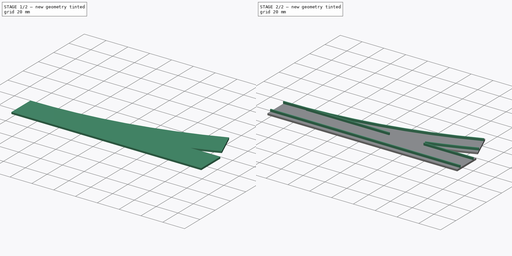
[diagram: build sequence overview — one tinted view per stage of 2, left to right]
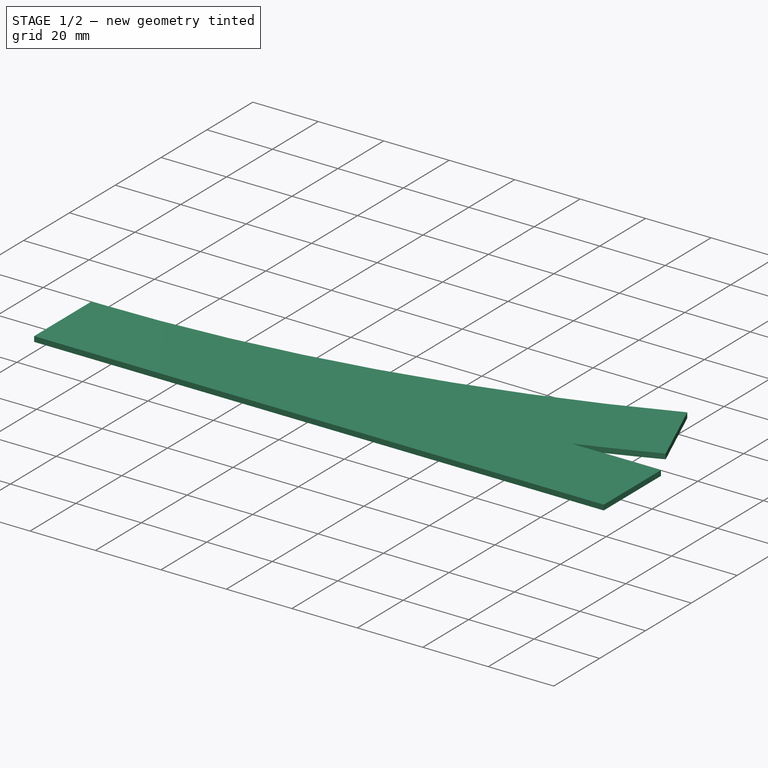
[diagram: stage 1 of 2 — iso view after this stage's code; geometry added in this stage tinted green]
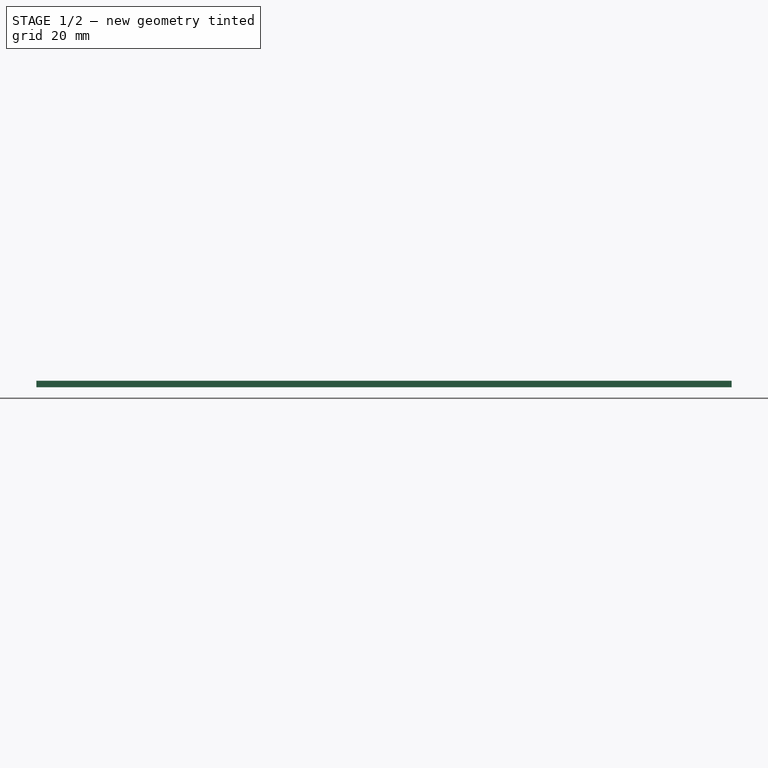
[diagram: stage 1 of 2 — front view after this stage's code; geometry added in this stage tinted green]
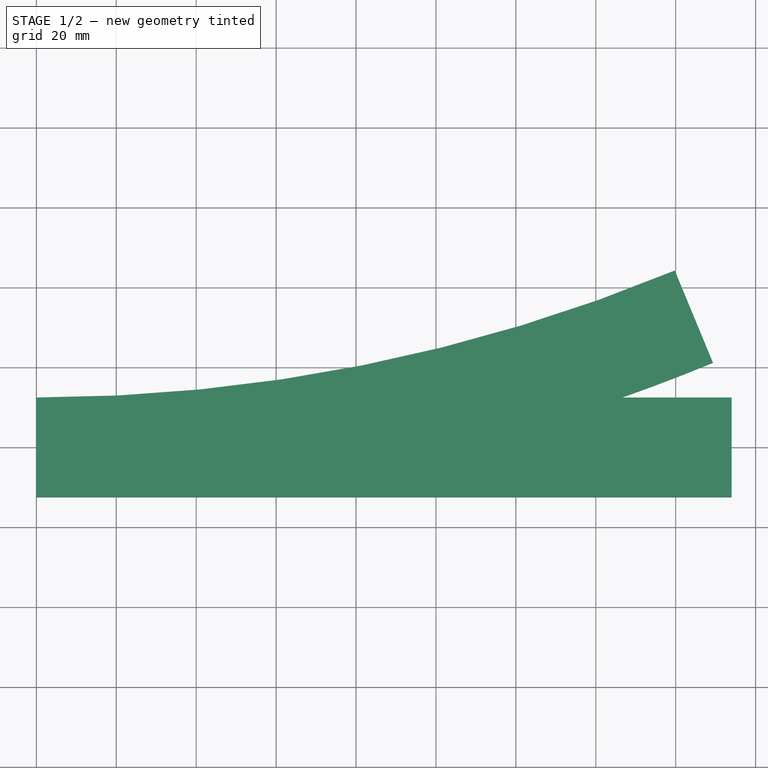
[diagram: stage 1 of 2 — top view after this stage's code; geometry added in this stage tinted green]
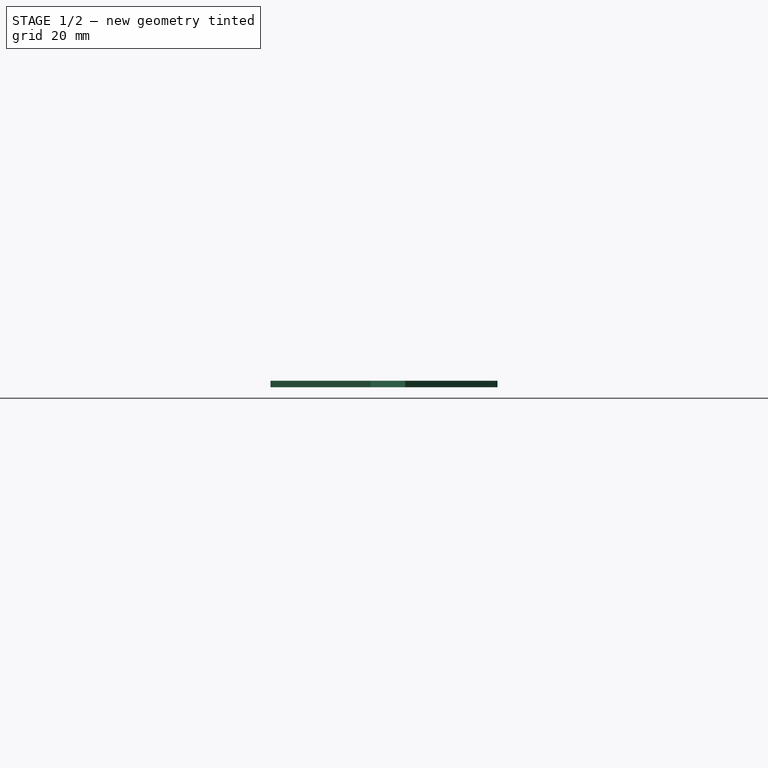
[diagram: stage 1 of 2 — right view after this stage's code; geometry added in this stage tinted green]
FCSTD DOCUMENT  (FreeCAD 0.18R16131 (Git))
Label: Turnout
License: All rights reserved
LicenseURL: http://en.wikipedia.org/wiki/All_rights_reserved
objects: Sketcher::SketchObject×2, PartDesign::Pad×2, PartDesign::Body×1
note: 7 computed .brp shape members not serialized (recipe doc carries the construction recipe); baked Part::Feature solids carry a one-line shape summary decoded from their .brp

FEATURE [Sketcher::SketchObject] Sketch
  MapMode = 5
  Support = -> [XY_Plane]
  sketch-geometry (11):
    g0: LineSegment [constr] StartX=0 StartY=-12.5 StartZ=0 EndX=0 EndY=0 EndZ=0
    g1: LineSegment [constr] StartX=0 StartY=0 StartZ=0 EndX=-7.67e-14 EndY=12.5 EndZ=0
    g2: LineSegment StartX=0 StartY=-12.5 StartZ=0 EndX=174 EndY=-12.5 EndZ=0
    g3: LineSegment StartX=0 StartY=-12.5 StartZ=0 EndX=-7.67e-14 EndY=12.5 EndZ=0
    g4: LineSegment StartX=174 StartY=-12.5 StartZ=0 EndX=174 EndY=12.5 EndZ=0
    g5: LineSegment StartX=174 StartY=12.5 StartZ=0 EndX=146.629 EndY=12.5 EndZ=0
    g6: LineSegment [constr] StartX=0 StartY=0 StartZ=0 EndX=174 EndY=0 EndZ=0
    g7: ArcOfCircle CenterX=0 CenterY=430 CenterZ=0 NormalX=0 NormalY=0 NormalZ=1 AngleXU=0 Radius=417.5 StartAngle=4.71239 EndAngle=5.10509
    g8: ArcOfCircle CenterX=0 CenterY=430 CenterZ=0 NormalX=0 NormalY=0 NormalZ=1 AngleXU=0 Radius=442.5 StartAngle=5.05014 EndAngle=5.10509
    g9: LineSegment [constr] StartX=0 StartY=430 StartZ=0 EndX=169.337 EndY=21.1833 EndZ=0
    g10: LineSegment StartX=159.77 StartY=44.2803 StartZ=0 EndX=169.337 EndY=21.1833 EndZ=0
  constraints (31):
    c: PointOnObject(g1,g-2)
    c: PointOnObject(g0,g-2)
    c: Coincident(g0,g-1)
    c: Coincident(g1,g0)
    c: Equal(g1,g0)
    c: Coincident(g2,g0)
    c: Horizontal(g2)
    c: DistanceX(g2,g2) = 174
    c: DistanceY(g2,g1) = 25
    c: Coincident(g3,g2)
    c: Coincident(g3,g1)
    c: Coincident(g4,g2)
    c: Vertical(g4)
    c: Equal(g4,g3)
    c: Coincident(g5,g4)
    c: Horizontal(g5)
    c: Coincident(g6,g-1)
    c: PointOnObject(g6,g4)
    c: Horizontal(g6)
    c: Coincident(g7,g3)
    c: Coincident(g8,g7)
    c: Coincident(g8,g5)
    c: Coincident(g9,g7)
    c: Coincident(g9,g8)
    c: PointOnObject(g7,g9)
    c: Coincident(g10,g7)
    c: Coincident(g10,g8)
    c: Equal(g10,g3)
    c: Angle(g-2,g9) = 0.392699
    c: PointOnObject(g7,g-2)
    c: DistanceY(g-1,g7) = 430
FEATURE [PartDesign::Pad] Pad
  Length = 1.6
  Length2 = 100
  Profile = -> Sketch
  Type = 0
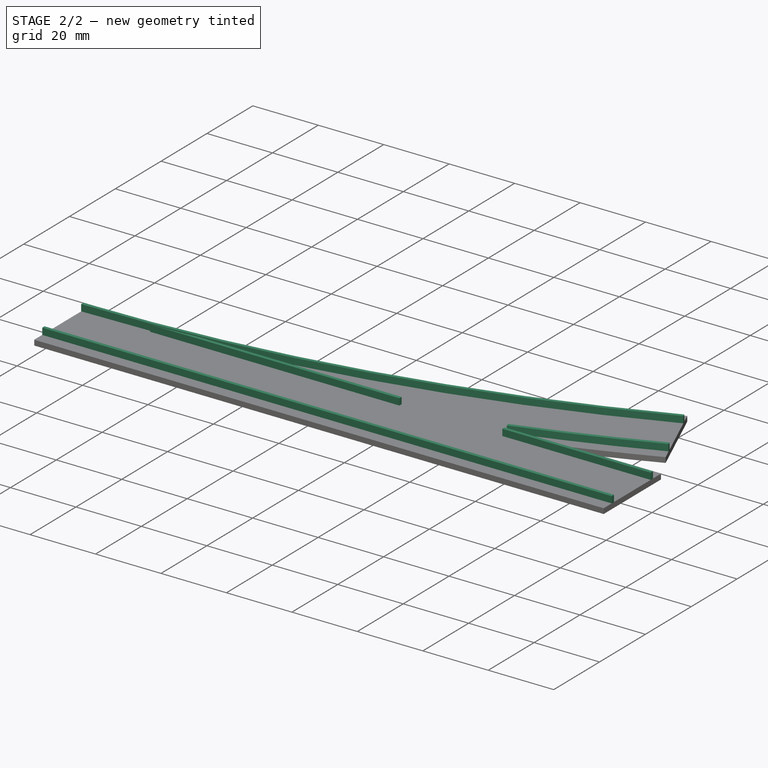
[diagram: stage 2 of 2 — iso view after this stage's code; geometry added in this stage tinted green]
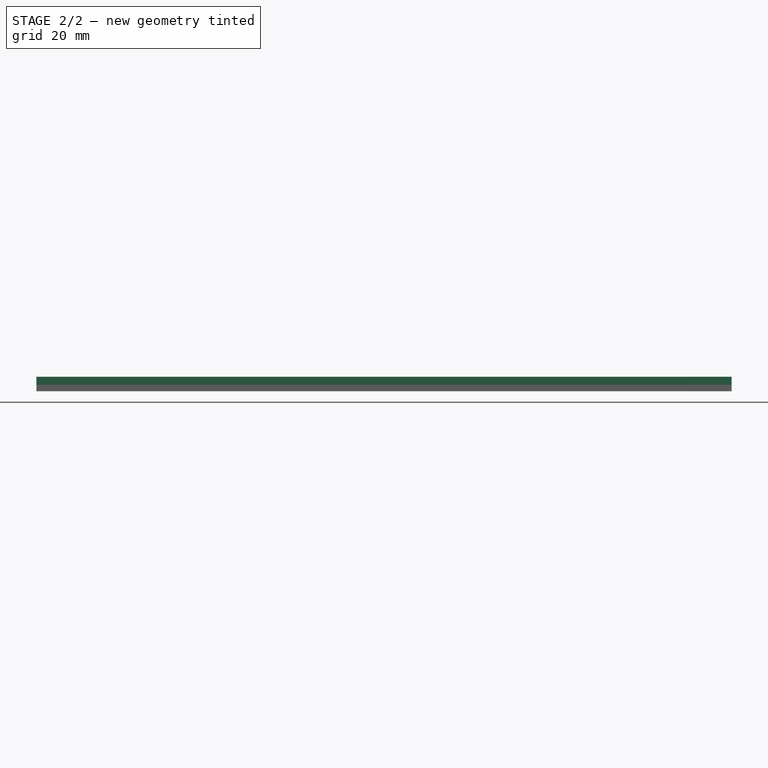
[diagram: stage 2 of 2 — front view after this stage's code; geometry added in this stage tinted green]
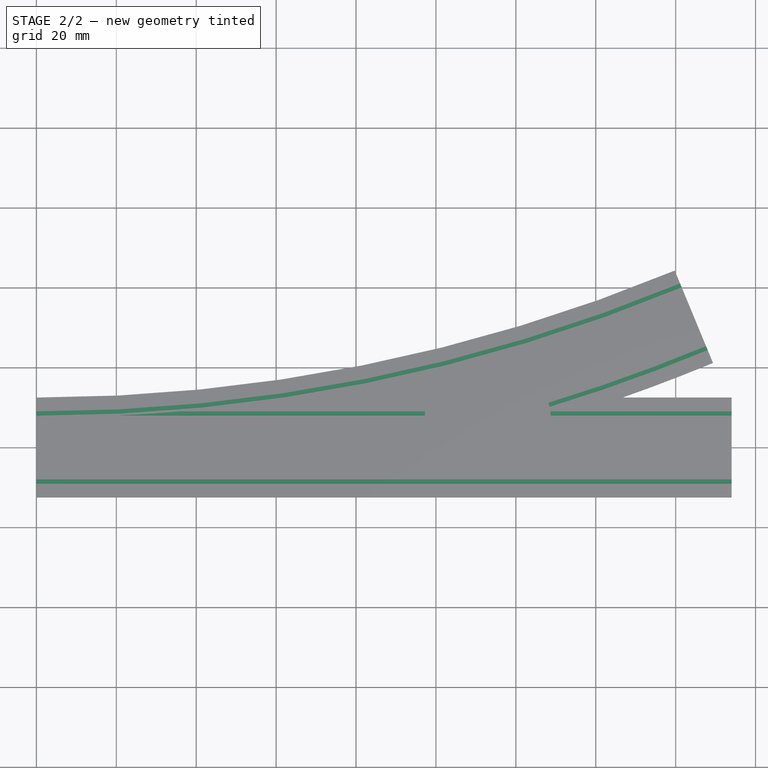
[diagram: stage 2 of 2 — top view after this stage's code; geometry added in this stage tinted green]
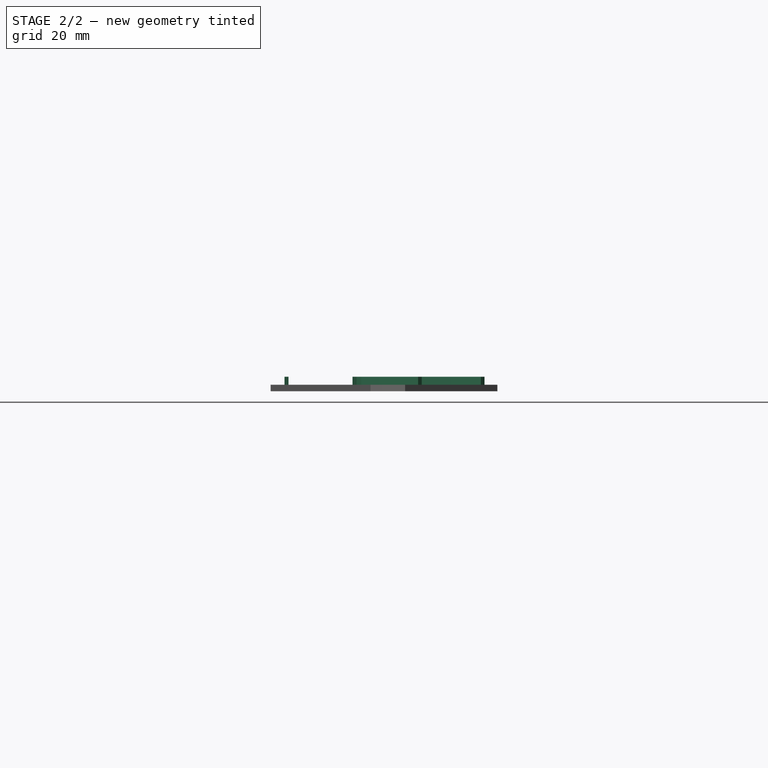
[diagram: stage 2 of 2 — right view after this stage's code; geometry added in this stage tinted green]
FEATURE [Sketcher::SketchObject] Sketch001
  ExternalGeometry = -> [Pad]
  MapMode = 5
  Placement = pos=(0,0,1.6) rot=(0,0,1;0rad)
  Support = -> [Pad]
  sketch-geometry (22):
    g0: LineSegment StartX=0 StartY=-8 StartZ=0 EndX=174 EndY=-8 EndZ=0
    g1: LineSegment StartX=174 StartY=-8 StartZ=0 EndX=174 EndY=-9 EndZ=0
    g2: LineSegment StartX=174 StartY=-9 StartZ=0 EndX=0 EndY=-9 EndZ=0
    g3: LineSegment StartX=0 StartY=-9 StartZ=0 EndX=0 EndY=-8 EndZ=0
    g4: ArcOfCircle CenterX=0 CenterY=430 CenterZ=0 NormalX=0 NormalY=0 NormalZ=1 AngleXU=0 Radius=422 StartAngle=4.71239 EndAngle=5.10509
    g5: ArcOfCircle CenterX=0 CenterY=430 CenterZ=0 NormalX=0 NormalY=0 NormalZ=1 AngleXU=0 Radius=421 StartAngle=4.71239 EndAngle=5.10509
    g6: LineSegment StartX=-7.73e-14 StartY=9 StartZ=0 EndX=-7.75e-14 EndY=8 EndZ=0
    g7: LineSegment StartX=161.11 StartY=41.0467 StartZ=0 EndX=161.492 EndY=40.1228 EndZ=0
    g8: ArcOfCircle CenterX=0 CenterY=430 CenterZ=0 NormalX=0 NormalY=0 NormalZ=1 AngleXU=0 Radius=439 StartAngle=5.00943 EndAngle=5.10509
    g9: ArcOfCircle CenterX=0 CenterY=430 CenterZ=0 NormalX=0 NormalY=0 NormalZ=1 AngleXU=0 Radius=438 StartAngle=5.00943 EndAngle=5.10509
    g10: LineSegment StartX=167.615 StartY=25.3408 StartZ=0 EndX=167.998 EndY=24.4169 EndZ=0
    g11: LineSegment StartX=128.702 StartY=8 StartZ=0 EndX=174 EndY=8 EndZ=0
    g12: LineSegment StartX=174 StartY=8 StartZ=0 EndX=174 EndY=9 EndZ=0
    g13: LineSegment StartX=174 StartY=9 StartZ=0 EndX=128.702 EndY=9 EndZ=0
    g14: LineSegment StartX=128.702 StartY=9 StartZ=0 EndX=128.702 EndY=8 EndZ=0
    g15: LineSegment [constr] StartX=0 StartY=430 StartZ=0 EndX=128.491 EndY=10.225 EndZ=0
    g16: LineSegment StartX=128.198 StartY=11.1812 StartZ=0 EndX=128.491 EndY=10.225 EndZ=0
    g17: LineSegment StartX=97.218 StartY=8 StartZ=0 EndX=97.218 EndY=9 EndZ=0
    g18: LineSegment StartX=97.218 StartY=9 StartZ=0 EndX=35.8785 EndY=9 EndZ=0
    g19: LineSegment StartX=97.218 StartY=8 StartZ=0 EndX=21.0776 EndY=8 EndZ=0
    g20: ArcOfCircle CenterX=0 CenterY=430 CenterZ=0 NormalX=0 NormalY=0 NormalZ=1 AngleXU=0 Radius=422.526 StartAngle=4.76229 EndAngle=4.79741
    g21: LineSegment [constr] StartX=97.218 StartY=8 StartZ=0 EndX=128.702 EndY=8 EndZ=0
  constraints (60):
    c: Coincident(g0,g1)
    c: Coincident(g1,g2)
    c: Coincident(g2,g3)
    c: Coincident(g3,g0)
    c: Horizontal(g0)
    c: Horizontal(g2)
    c: Vertical(g1)
    c: Vertical(g3)
    c: PointOnObject(g0,g-4)
    c: PointOnObject(g1,g-3)
    c: DistanceY(g0,g-1) = 8
    c: DistanceY(g3,g3) = 1
    c: Coincident(g4,g-6)
    c: PointOnObject(g4,g-4)
    c: PointOnObject(g4,g-8)
    c: Coincident(g5,g4)
    c: PointOnObject(g5,g-4)
    c: PointOnObject(g5,g-8)
    c: Coincident(g6,g5)
    c: Coincident(g6,g4)
    c: Equal(g6,g3)
    c: DistanceY(g-1,g4) = 8
    c: Coincident(g7,g5)
    c: Coincident(g7,g4)
    c: Coincident(g8,g4)
    c: PointOnObject(g8,g-8)
    c: Coincident(g9,g4)
    c: PointOnObject(g9,g-8)
    c: Coincident(g10,g9)
    c: Coincident(g10,g8)
    c: Distance(g4,g9) = 16
    c: Equal(g10,g7)
    c: Coincident(g11,g12)
    c: Coincident(g12,g13)
    c: Coincident(g13,g14)
    c: Coincident(g14,g11)
    c: Horizontal(g11)
    c: Horizontal(g13)
    c: Vertical(g12)
    c: Vertical(g14)
    c: PointOnObject(g12,g-3)
    c: Equal(g12,g1)
    c: Coincident(g15,g4)
    c: Coincident(g15,g8)
    c: PointOnObject(g9,g15)
    c: Coincident(g16,g9)
    c: Coincident(g16,g8)
    c: Vertical(g17)
    c: Coincident(g18,g17)
    c: Horizontal(g18)
    c: Horizontal(g19)
    c: Coincident(g20,g4)
    c: Coincident(g20,g18)
    c: Coincident(g20,g19)
    c: Coincident(g17,g19)
    c: Coincident(g21,g17)
    c: Coincident(g21,g11)
    c: Horizontal(g21)
    c: Equal(g14,g17)
    c: DistanceY(g0,g11) = 16
FEATURE [PartDesign::Pad] Pad001
  BaseFeature = -> Pad
  Length = 2
  Length2 = 100
  Profile = -> Sketch001
  Type = 0
FEATURE [PartDesign::Body] Body
  Group = -> [Sketch,Pad,Sketch001,Pad001]
  Origin = -> Origin
  Tip = -> Pad001
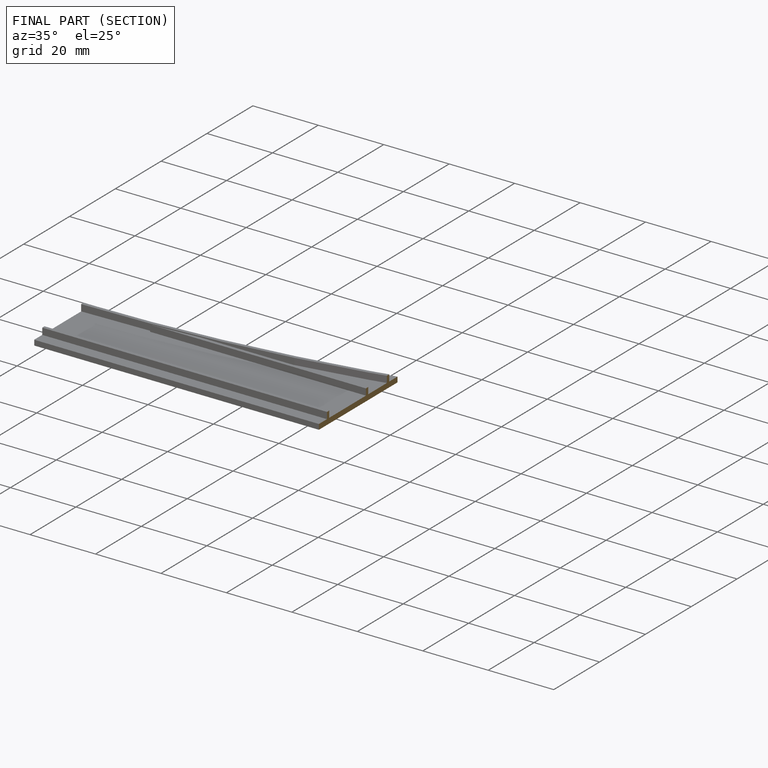
[diagram: finished part — half-section view (interior)]
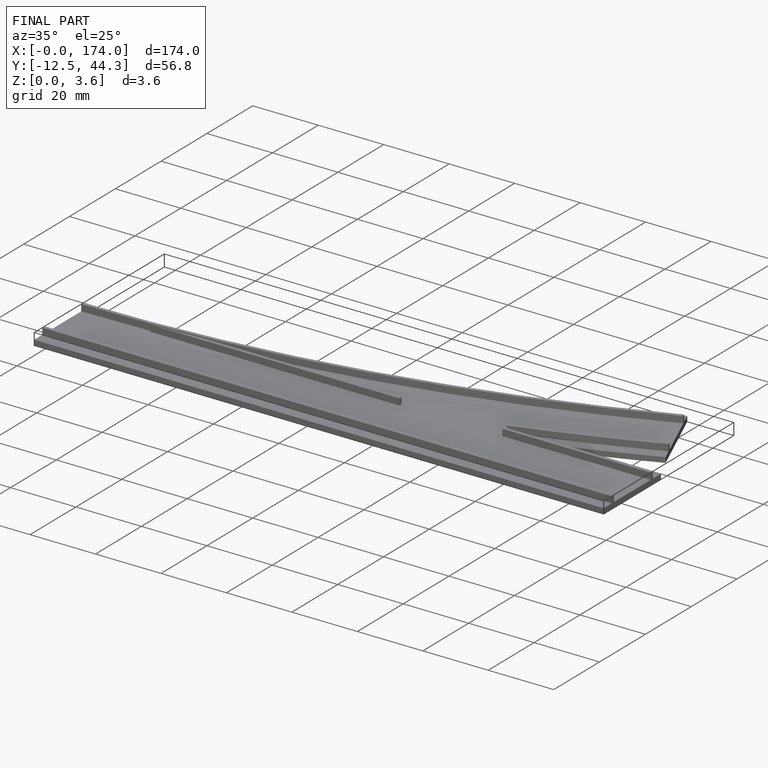
[diagram: finished part — iso view with bounding-box wireframe]
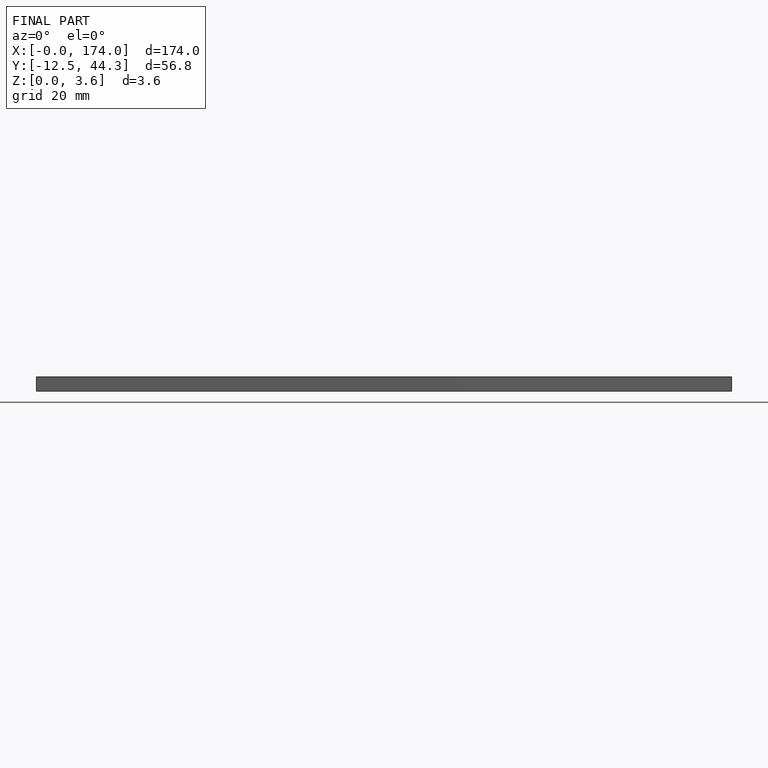
[diagram: finished part — front view with bounding-box wireframe]
